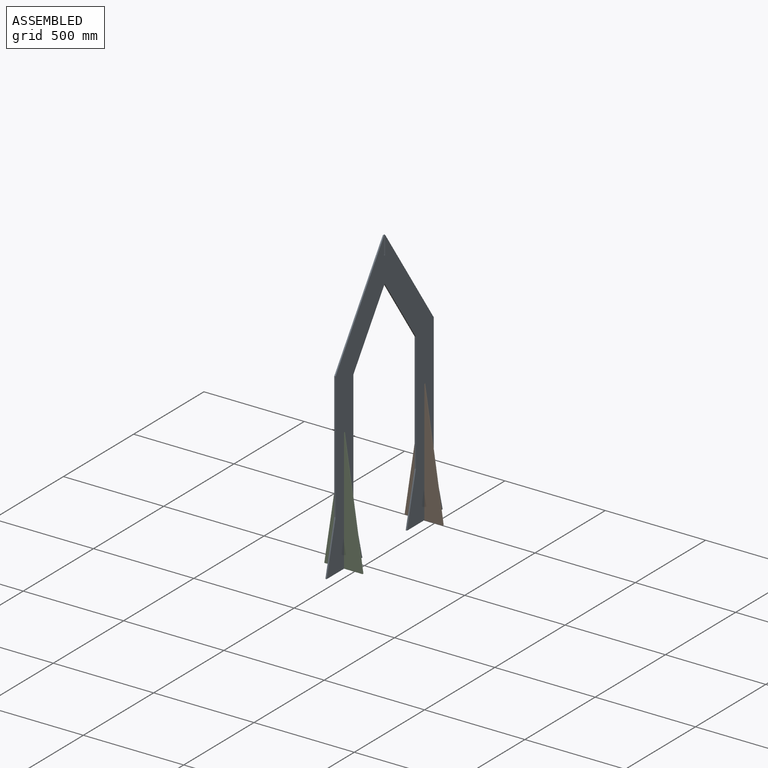
[diagram: assembled view]
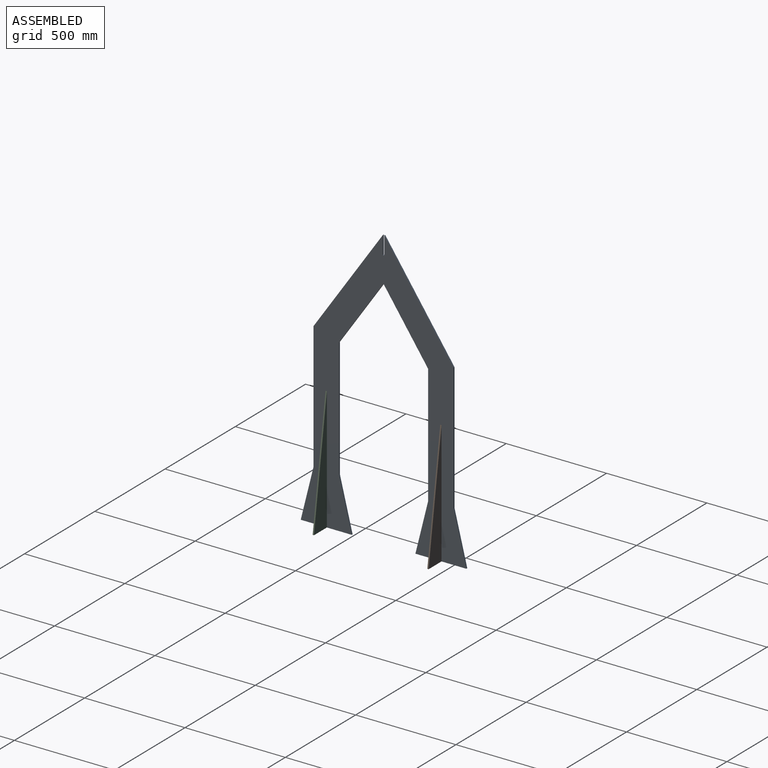
[diagram: assembled view, second angle]
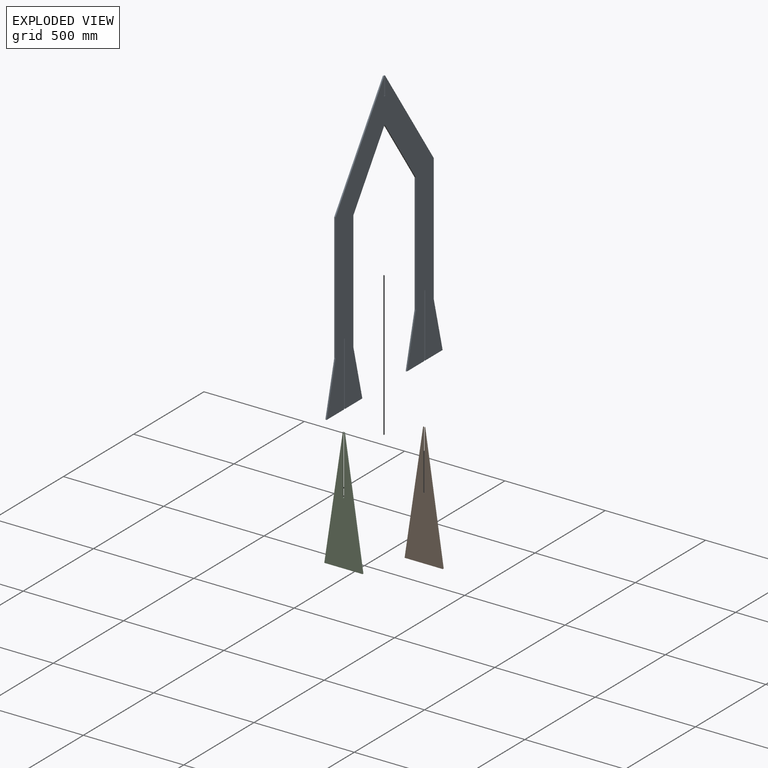
[diagram: exploded view]
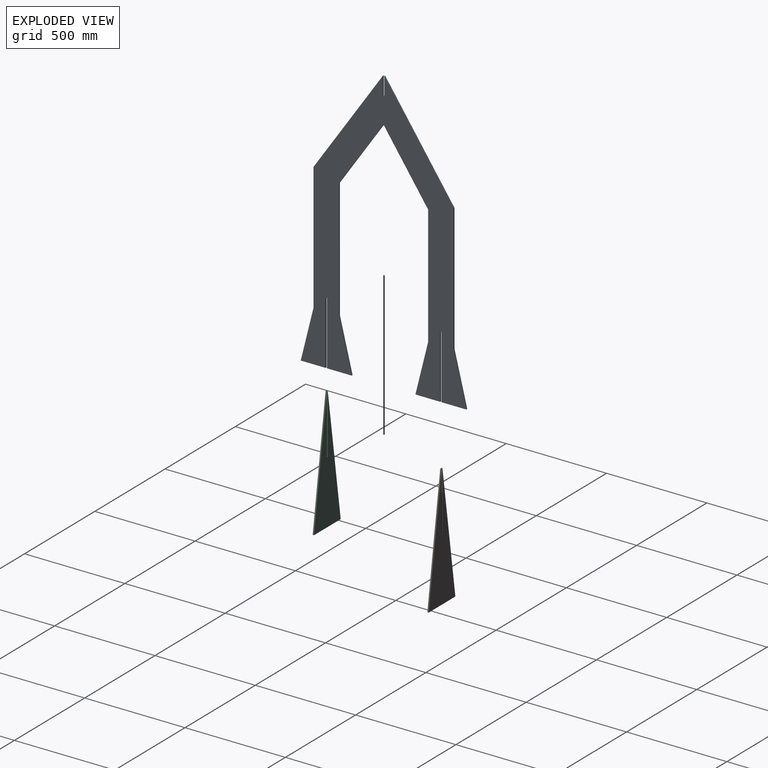
[diagram: exploded view, second angle]
ASSEMBLY  parts=3 mates=2
PART A: 27 faces, bbox 825.5x6.4x1392.4 mm
  f0: plane 123.83x6.35mm, normal (0,0,-1), area 786.3mm2, adj f3,f4,f10,f23
  f1: plane 503.38x346.08mm, normal (-0.82,0,0.57), area 3879mm2, adj f3,f4,f15,f20
  f2: plane 123.83x6.35mm, normal (0,0,-1), area 786.3mm2, adj f3,f4,f16,f25
  f3: plane 1392.38x825.5mm, normal (0,-1,0), area 376546.5mm2, adj f0,f1,f2,f5,f6,f7,f8,f9
  f4: plane 1392.38x825.5mm, normal (0,1,0), area 376546.5mm2, adj f0,f1,f2,f5,f6,f7,f8,f9
  f5: plane 254x63.5mm, normal (0.97,0,0.24), area 1662.5mm2, adj f3,f4,f6,f17
  f6: plane 595.56x6.35mm, normal (1,0,0), area 3781.8mm2, adj f3,f4,f5,f7
  f7: plane 323.27x222.25mm, normal (0.82,0,-0.57), area 2491.1mm2, adj f3,f4,f6,f8
  f8: plane 323.27x222.25mm, normal (-0.82,0,-0.57), area 2491.1mm2, adj f3,f4,f7,f9
  f9: plane 595.56x6.35mm, normal (-1,0,0), area 3781.8mm2, adj f3,f4,f8,f10
  f10: plane 254x63.5mm, normal (-0.97,0,0.24), area 1662.5mm2, adj f0,f3,f4,f9
  f11: plane 123.83x6.35mm, normal (0,0,-1), area 786.3mm2, adj f3,f4,f12,f21
  f12: plane 254x63.5mm, normal (0.97,0,0.24), area 1662.5mm2, adj f3,f4,f11,f13
  f13: plane 635x6.35mm, normal (1,0,0), area 4032.3mm2, adj f3,f4,f12,f14
  f14: plane 503.38x346.08mm, normal (0.82,0,0.57), area 3879mm2, adj f3,f4,f13,f19
  f15: plane 635x6.35mm, normal (-1,0,0), area 4032.3mm2, adj f1,f3,f4,f16
  f16: plane 254x63.5mm, normal (-0.97,0,0.24), area 1662.5mm2, adj f2,f3,f4,f15
  f17: plane 123.83x6.35mm, normal (0,0,-1), area 786.3mm2, adj f3,f4,f5,f26
  f18: plane 6.35x6.35mm, normal (0,0,1), area 40.3mm2, adj f3,f4,f19,f20
  f19: plane 90.63x6.35mm, normal (-1,0,0), area 575.5mm2, adj f3,f4,f14,f18
  f20: plane 90.63x6.35mm, normal (1,0,0), area 575.5mm2, adj f1,f3,f4,f18
  f21: plane 317.5x6.35mm, normal (-1,0,0), area 2016.1mm2, adj f3,f4,f11,f22
  f22: plane 6.35x6.35mm, normal (0,0,-1), area 40.3mm2, adj f3,f4,f21,f23
  f23: plane 317.5x6.35mm, normal (1,0,0), area 2016.1mm2, adj f0,f3,f4,f22
  f24: plane 6.35x6.35mm, normal (0,0,-1), area 40.3mm2, adj f3,f4,f25,f26
  f25: plane 317.5x6.35mm, normal (1,0,0), area 2016.1mm2, adj f2,f3,f4,f24
  f26: plane 317.5x6.35mm, normal (-1,0,0), area 2016.1mm2, adj f3,f4,f17,f24
PART B: 8 faces, bbox 190.5x6.4x613.8 mm
  f0: plane 613.83x92.08mm, normal (-0.99,0,0.15), area 3941.4mm2, adj f1,f5,f6,f7
  f1: plane 190.5x6.35mm, normal (0,0,-1), area 1209.7mm2, adj f0,f2,f6,f7
  f2: plane 613.83x92.08mm, normal (0.99,0,0.15), area 3941.4mm2, adj f1,f3,f6,f7
  f3: plane 296.33x6.35mm, normal (-1,0,0), area 1881.7mm2, adj f2,f4,f6,f7
  f4: plane 6.35x6.35mm, normal (0,0,1), area 40.3mm2, adj f3,f5,f6,f7
  f5: plane 296.33x6.35mm, normal (1,0,0), area 1881.7mm2, adj f0,f4,f6,f7
  f6: plane 613.83x190.5mm, normal (0,-1,0), area 58534.8mm2, adj f0,f1,f2,f3,f4,f5
  f7: plane 613.83x190.5mm, normal (0,1,0), area 58534.8mm2, adj f0,f1,f2,f3,f4,f5
PART C: same geometry as B
PLACE A rot(axis=(0,0,1),90deg) t=(799.77,-506.2,-66.66)mm
PLACE B t=(797.87,-210.92,-820.35)mm
PLACE C t=(797.87,-782.42,-820.35)mm
MATE fastened A.f22 <-> B.f4  axis (0,0,-1) through (797.87,-214.1,-820.38)mm
MATE fastened C.f4 <-> A.f24  axis (0,0,1) through (797.87,-785.6,-820.38)mm
